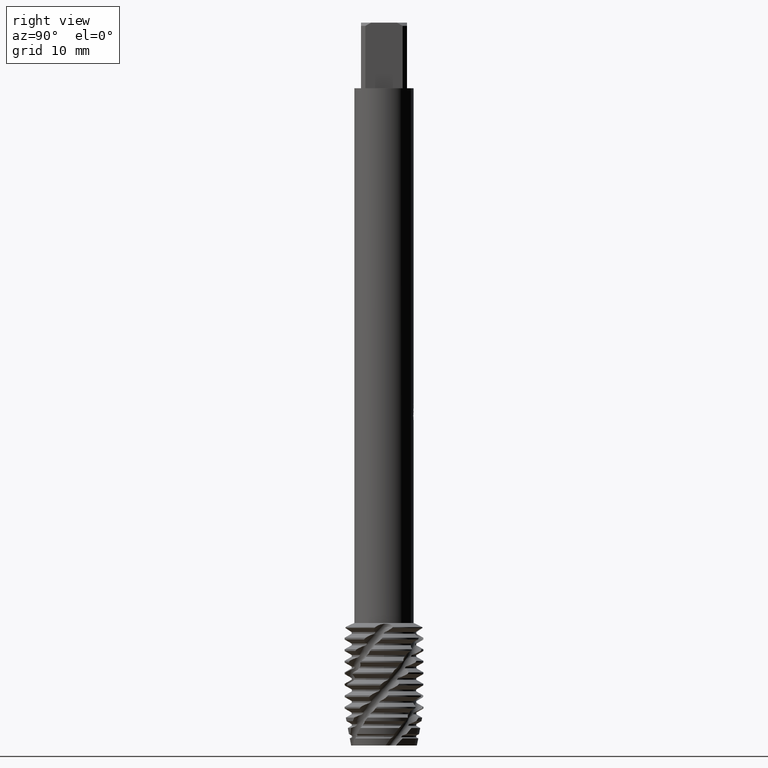
[diagram: clean part render]
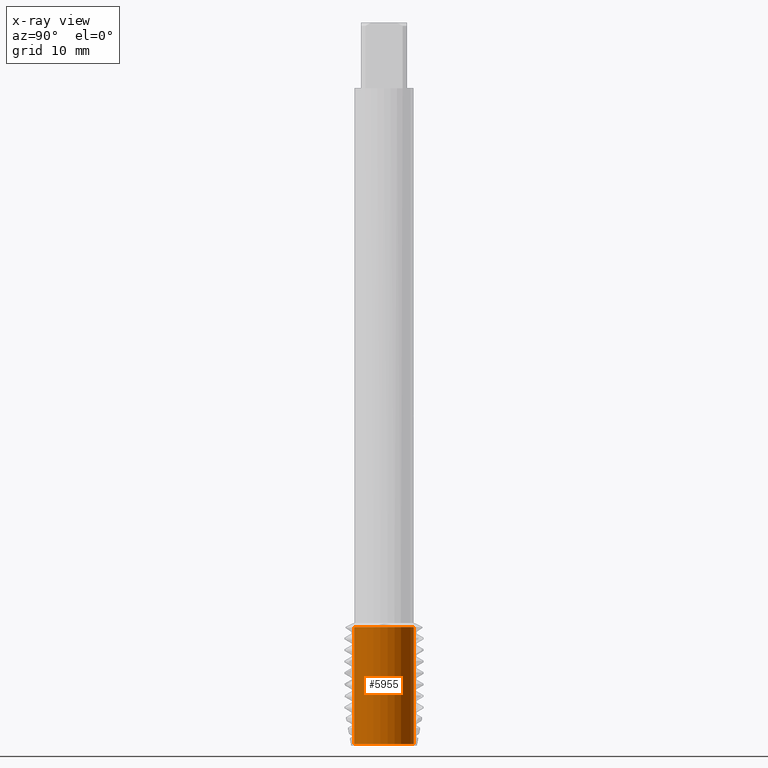
[diagram: x-ray — body ghosted, one internal face saturated and labeled with its STEP entity id]
A machine part, right view, then the same camera in x-ray: the body is ghosted and one INTERNAL B-rep face — a face not visible from any outside direction — is saturated and labeled: STEP entity #5955.
In plain terms, the highlighted cylindrical surface (edge-blend (fillet) strip) has radius 4.5475 mm, axis along (-0, -0, 1).
Its self-contained STEP definition (entity closure, byte-faithful):
#2251=VERTEX_POINT('',#6470);
#2317=VERTEX_POINT('',#6543);
#3081=EDGE_CURVE('',#2317,#5031,#7368,.T.);
#3109=EDGE_CURVE('',#2251,#2317,#7400,.T.);
#4737=EDGE_CURVE('',#5987,#5031,#9179,.T.);
#5031=VERTEX_POINT('',#9494);
#5735=EDGE_CURVE('',#5987,#2251,#10257,.T.);
#5955=ADVANCED_FACE('',(#10494),#10495,.T.);
#5987=VERTEX_POINT('',#10527);
#6470=CARTESIAN_POINT('',(0.0,4.547506245,-109.796310656924));
#6543=CARTESIAN_POINT('',(5.56890504167394E-016,-4.547506245,-109.796310656924));
#7368=LINE('',#16001,#16002);
#7400=CIRCLE('',#16055,4.547506245);
#9179=CIRCLE('',#24694,4.547506245);
#9494=CARTESIAN_POINT('',(5.56890504167394E-016,-4.547506245,-92.0));
#10257=LINE('',#29928,#29929);
#10494=FACE_OUTER_BOUND('',#31100,.T.);
#10495=CYLINDRICAL_SURFACE('',#31101,4.547506245);
#10527=CARTESIAN_POINT('',(0.0,4.547506245,-92.0));
#16001=CARTESIAN_POINT('',(5.56890504167394E-016,-4.547506245,-100.898155328462));
#16002=VECTOR('',#34053,1.0);
#16055=AXIS2_PLACEMENT_3D('',#34090,#34091,#34092);
#24694=AXIS2_PLACEMENT_3D('',#35854,#35855,#35856);
#29928=CARTESIAN_POINT('',(-5.56890504167394E-016,4.547506245,-100.898155328462));
#29929=VECTOR('',#36896,1.0);
#31100=EDGE_LOOP('',(#37093,#37094,#37095,#37096));
#31101=AXIS2_PLACEMENT_3D('',#37097,#37098,#37099);
#34053=DIRECTION('',(-0.0,-0.0,1.0));
#34090=CARTESIAN_POINT('',(0.0,0.0,-109.796310656924));
#34091=DIRECTION('',(0.0,0.0,-1.0));
#34092=DIRECTION('',(0.0,1.0,0.0));
#35854=CARTESIAN_POINT('',(0.0,0.0,-92.0));
#35855=DIRECTION('',(0.0,0.0,-1.0));
#35856=DIRECTION('',(0.0,1.0,0.0));
#36896=DIRECTION('',(0.0,0.0,-1.0));
#37093=ORIENTED_EDGE('',*,*,#5735,.F.);
#37094=ORIENTED_EDGE('',*,*,#4737,.T.);
#37095=ORIENTED_EDGE('',*,*,#3081,.F.);
#37096=ORIENTED_EDGE('',*,*,#3109,.F.);
#37097=CARTESIAN_POINT('',(0.0,0.0,-100.898155328462));
#37098=DIRECTION('',(-0.0,-0.0,1.0));
#37099=DIRECTION('',(0.0,1.0,0.0));